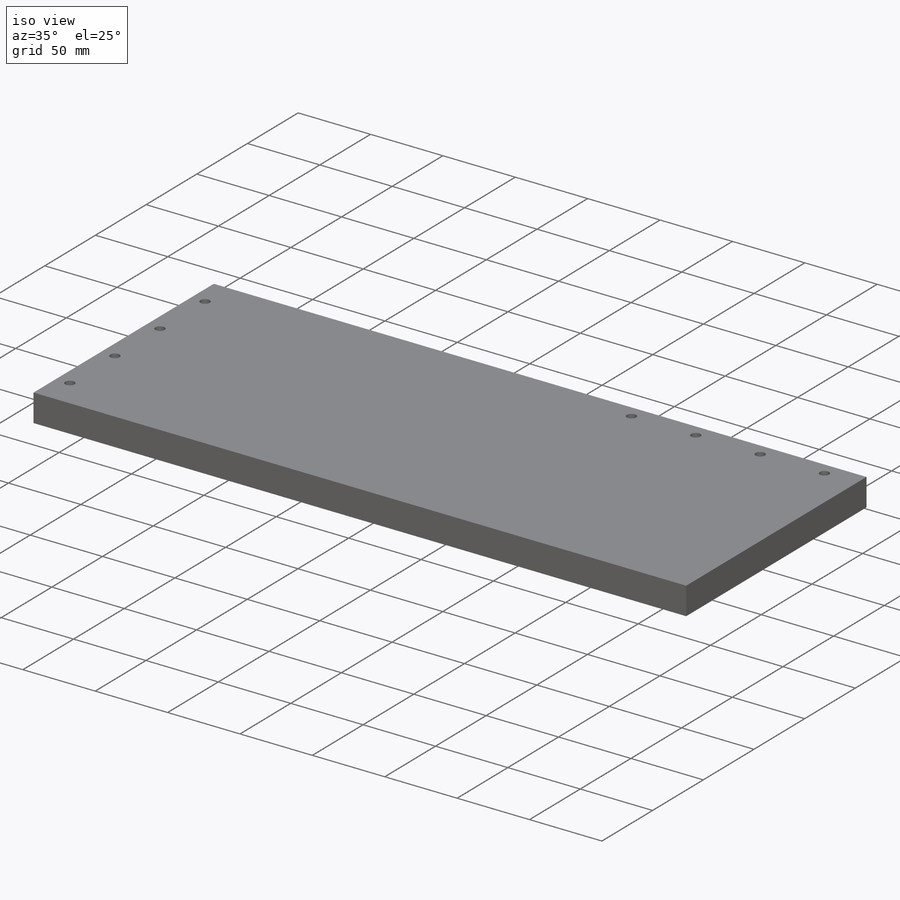
[diagram: iso view]
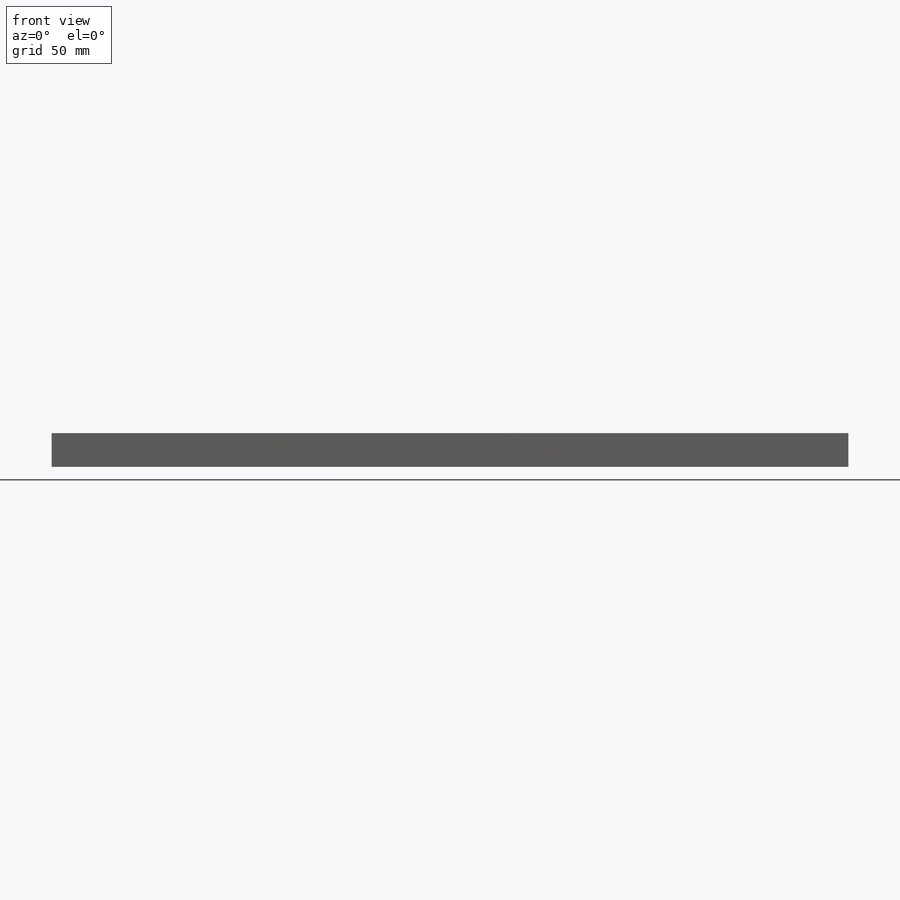
[diagram: front view]
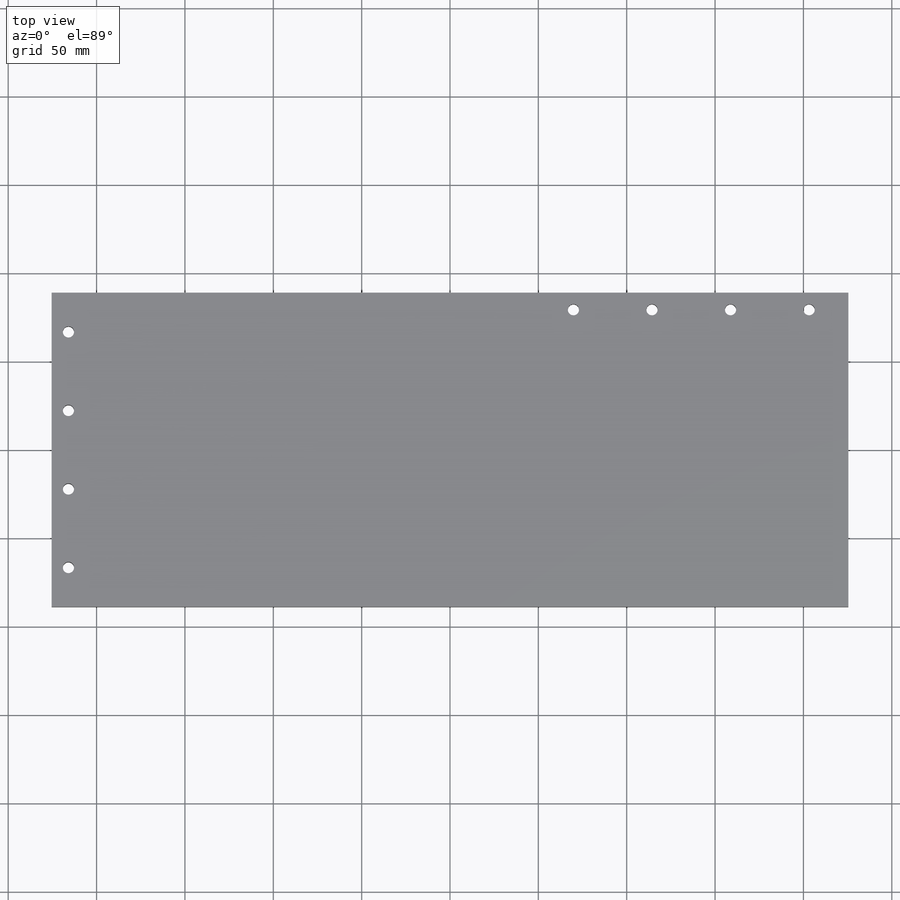
[diagram: top view]
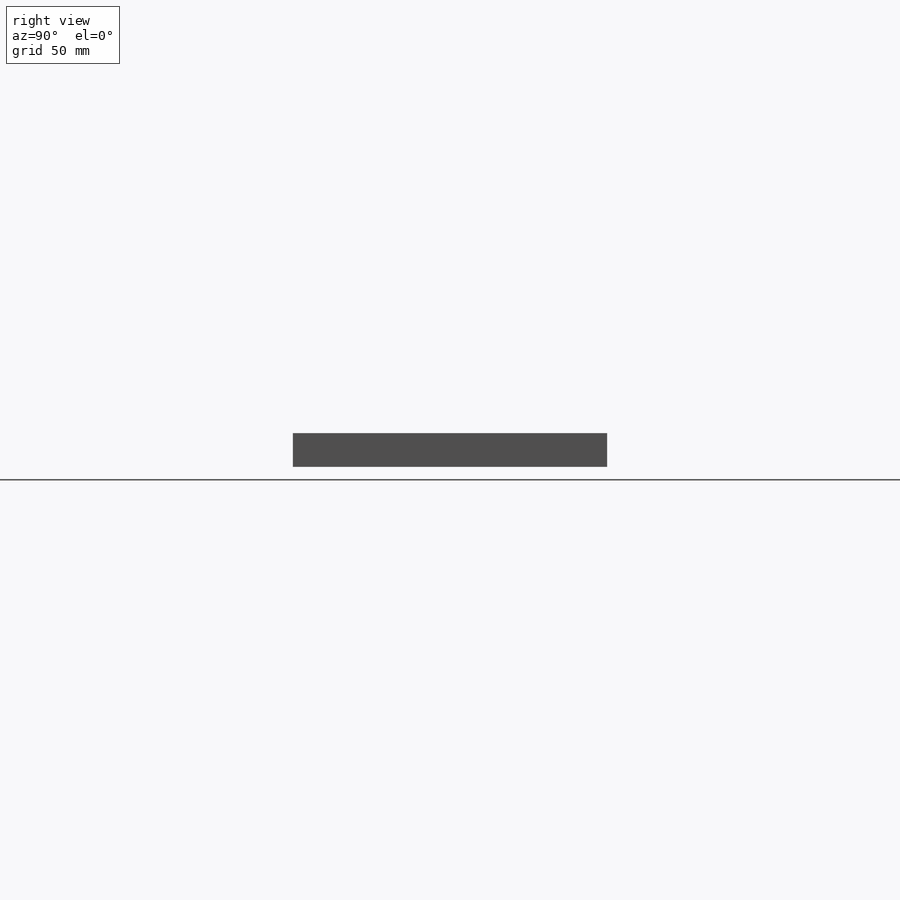
[diagram: right view]
SOLIDWORKS PART (.sldprt)
format: sldprt  version: not decoded by parser v0  size: 604,672 bytes
history: native  units: mm
features: sketch x5, hole x2, material x1, extrude x1 (+11 scaffold rows collapsed)
feature tree (20):
  scaffold x11  (default folders/planes/origin — collapsed)
  material  "Pine"
  sketch  "Sketch1"  dims[D1=450.85mm D2=177.8mm]
  extrude  "Boss-Extrude1"  Depth=19.05mm
  hole  "1/4 (0.25) Diameter Hole2"  Diameter=6.35mm Depth=25.4mm
  sketch  "Sketch7"  dims[D1=22.225mm D2=44.45mm D3=44.45mm D4=44.45mm D5=9.525mm]
  sketch  "Sketch6"  dims[hole-wizard template sketch: 47 standard entries collapsed; hole parameters kept: c15.Hole Depth=25.4mm c15.D3=~14.816244mm c15.Drill Angle=118.0deg]
  hole  "1/4 (0.25) Diameter Hole3"  Diameter=6.35mm Depth=25.4mm
  sketch  "Sketch11"  dims[D1=22.225mm D2=44.45mm D3=44.45mm D4=44.45mm D5=9.652mm]
  sketch  "Sketch10"  dims[hole-wizard template sketch: 47 standard entries collapsed; hole parameters kept: c15.Hole Depth=25.4mm c15.D3=~14.816244mm c15.Drill Angle=118.0deg]
decode coverage: 8 of 8 modeling features carry decoded parameters
note: ~ marks probable driven/reference dimensions
note: suppression state not decoded; provenance and decode notes live in map.json
